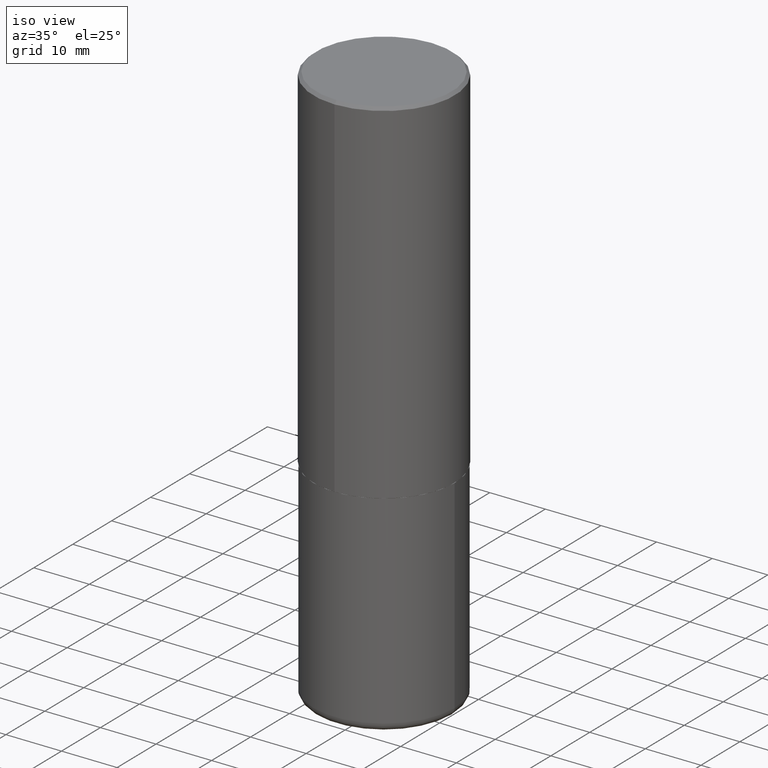
[diagram: clean part render]
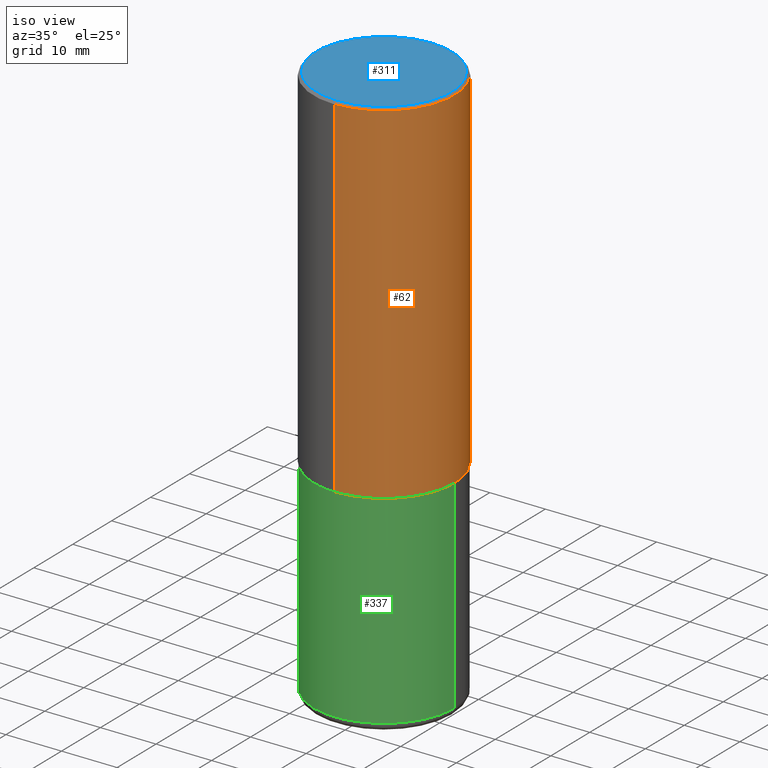
[diagram: same view with three faces highlighted in distinct colors, each labeled with its STEP entity id]
A machine part, iso view with three faces highlighted in distinct colors.
Their STEP definitions:

[orange] entity #62 — the highlighted cylindrical surface (partial cylindrical patch) has radius 12.7 mm, axis along (-0, 0, 1).
#2 = CARTESIAN_POINT ( 'NONE',  ( 0.000000000000000000, 0.000000000000000000, 0.000000000000000000 ) ) ;
#20 = VECTOR ( 'NONE', #314, 39.37007874015748143 ) ;
#26 = DIRECTION ( 'NONE',  ( -6.982962677686265922E-15, -1.000000000000000000, 3.491643216902136408E-15 ) ) ;
#32 = CARTESIAN_POINT ( 'NONE',  ( 4.889089068553708695E-31, -6.985609897644266091E-17, -0.02000000000000010797 ) ) ;
#38 = CYLINDRICAL_SURFACE ( 'NONE', #355, 0.5000000000000001110 ) ;
#40 = VERTEX_POINT ( 'NONE', #327 ) ;
#42 = EDGE_LOOP ( 'NONE', ( #71, #195, #366, #330 ) ) ;
#62 = ADVANCED_FACE ( 'NONE', ( #361 ), #38, .T. ) ;
#71 = ORIENTED_EDGE ( 'NONE', *, *, #165, .T. ) ;
#76 = DIRECTION ( 'NONE',  ( -2.444544534276841438E-29, 3.492804948822114088E-15, 1.000000000000000000 ) ) ;
#99 = AXIS2_PLACEMENT_3D ( 'NONE', #32, #287, #26 ) ;
#112 = AXIS2_PLACEMENT_3D ( 'NONE', #175, #239, #370 ) ;
#117 = DIRECTION ( 'NONE',  ( -2.444544534276841158E-29, 3.492804948822114482E-15, 1.000000000000000000 ) ) ;
#120 = LINE ( 'NONE', #280, #20 ) ;
#145 = DIRECTION ( 'NONE',  ( -6.982962677686265922E-15, -1.000000000000000000, 3.492804948822114088E-15 ) ) ;
#159 = CIRCLE ( 'NONE', #112, 0.5000000000000002220 ) ;
#165 = EDGE_CURVE ( 'NONE', #40, #229, #159, .T. ) ;
#175 = CARTESIAN_POINT ( 'NONE',  ( 6.108916791157827585E-29, -8.728519567106463881E-15, -2.499000000000000110 ) ) ;
#195 = ORIENTED_EDGE ( 'NONE', *, *, #230, .T. ) ;
#229 = VERTEX_POINT ( 'NONE', #312 ) ;
#230 = EDGE_CURVE ( 'NONE', #229, #387, #120, .T. ) ;
#239 = DIRECTION ( 'NONE',  ( -2.444544534276841438E-29, 3.492804948822114088E-15, 1.000000000000000000 ) ) ;
#247 = CARTESIAN_POINT ( 'NONE',  ( -3.491481338843133750E-15, -0.5000000000000001110, 1.746402474411057438E-15 ) ) ;
#261 = EDGE_CURVE ( 'NONE', #40, #391, #400, .T. ) ;
#280 = CARTESIAN_POINT ( 'NONE',  ( 3.552713678800501718E-15, 0.5000000000000001110, -1.746402474411057438E-15 ) ) ;
#287 = DIRECTION ( 'NONE',  ( -2.444544534276841438E-29, 3.492804948822114088E-15, 1.000000000000000000 ) ) ;
#312 = CARTESIAN_POINT ( 'NONE',  ( 3.552713678800533273E-15, 0.4999999999999916178, -2.499000000000001886 ) ) ;
#314 = DIRECTION ( 'NONE',  ( -2.444544534276841158E-29, 3.492804948822114482E-15, 1.000000000000000000 ) ) ;
#316 = VECTOR ( 'NONE', #117, 39.37007874015748143 ) ;
#327 = CARTESIAN_POINT ( 'NONE',  ( -3.491481338843073796E-15, -0.5000000000000089928, -2.498999999999998778 ) ) ;
#330 = ORIENTED_EDGE ( 'NONE', *, *, #261, .F. ) ;
#333 = EDGE_CURVE ( 'NONE', #391, #387, #388, .T. ) ;
#355 = AXIS2_PLACEMENT_3D ( 'NONE', #2, #76, #145 ) ;
#361 = FACE_OUTER_BOUND ( 'NONE', #42, .T. ) ;
#366 = ORIENTED_EDGE ( 'NONE', *, *, #333, .F. ) ;
#370 = DIRECTION ( 'NONE',  ( -6.982962677686266711E-15, -1.000000000000000000, 3.278217592397114284E-15 ) ) ;
#387 = VERTEX_POINT ( 'NONE', #413 ) ;
#388 = CIRCLE ( 'NONE', #99, 0.5000000000000000000 ) ;
#391 = VERTEX_POINT ( 'NONE', #406 ) ;
#400 = LINE ( 'NONE', #247, #316 ) ;
#406 = CARTESIAN_POINT ( 'NONE',  ( -3.430248998885764992E-15, -0.5000000000000001110, -0.01999999999999835937 ) ) ;
#413 = CARTESIAN_POINT ( 'NONE',  ( 3.491481338843133355E-15, 0.4999999999999999445, -0.02000000000000185310 ) ) ;

[blue] entity #311 — the highlighted planar face has unit normal (0, -0, -1).
#5 = VERTEX_POINT ( 'NONE', #198 ) ;
#29 = DIRECTION ( 'NONE',  ( -6.982962677686265922E-15, -1.000000000000000000, 3.492804948822113694E-15 ) ) ;
#45 = AXIS2_PLACEMENT_3D ( 'NONE', #48, #294, #29 ) ;
#48 = CARTESIAN_POINT ( 'NONE',  ( 3.219185358931801043E-45, -4.599624345227544074E-31, -1.316885544032078073E-16 ) ) ;
#61 = DIRECTION ( 'NONE',  ( 6.982962677686265922E-15, 1.000000000000000000, -3.492804948822114482E-15 ) ) ;
#104 = ORIENTED_EDGE ( 'NONE', *, *, #289, .T. ) ;
#116 = DIRECTION ( 'NONE',  ( -6.982962677686265922E-15, -1.000000000000000000, 3.492804948822113694E-15 ) ) ;
#118 = CARTESIAN_POINT ( 'NONE',  ( 3.219185358931801043E-45, -4.599624345227544074E-31, -1.316885544032078073E-16 ) ) ;
#135 = EDGE_LOOP ( 'NONE', ( #362, #104 ) ) ;
#139 = AXIS2_PLACEMENT_3D ( 'NONE', #118, #153, #116 ) ;
#153 = DIRECTION ( 'NONE',  ( -2.444544534276841438E-29, 3.492804948822114088E-15, 1.000000000000000000 ) ) ;
#160 = CARTESIAN_POINT ( 'NONE',  ( 3.351822085289408337E-15, 0.4800000000000000933, -1.742390652636218903E-15 ) ) ;
#188 = PLANE ( 'NONE',  #323 ) ;
#198 = CARTESIAN_POINT ( 'NONE',  ( 3.421651712066271240E-15, 0.4800000000000000933, -1.808234929837822918E-15 ) ) ;
#233 = VERTEX_POINT ( 'NONE', #405 ) ;
#289 = EDGE_CURVE ( 'NONE', #233, #5, #373, .T. ) ;
#294 = DIRECTION ( 'NONE',  ( -2.444544534276841438E-29, 3.492804948822114088E-15, 1.000000000000000000 ) ) ;
#311 = ADVANCED_FACE ( 'NONE', ( #321 ), #188, .F. ) ;
#315 = CIRCLE ( 'NONE', #139, 0.4800000000000000933 ) ;
#321 = FACE_OUTER_BOUND ( 'NONE', #135, .T. ) ;
#323 = AXIS2_PLACEMENT_3D ( 'NONE', #160, #379, #61 ) ;
#362 = ORIENTED_EDGE ( 'NONE', *, *, #416, .T. ) ;
#373 = CIRCLE ( 'NONE', #45, 0.4800000000000000933 ) ;
#379 = DIRECTION ( 'NONE',  ( 2.444544534276840877E-29, -3.492804948822114482E-15, -1.000000000000000000 ) ) ;
#405 = CARTESIAN_POINT ( 'NONE',  ( -3.361644018908050055E-15, -0.4800000000000000933, 1.544857821031407057E-15 ) ) ;
#416 = EDGE_CURVE ( 'NONE', #5, #233, #315, .T. ) ;

[green] entity #337 — the highlighted cylindrical surface (partial cylindrical patch) has radius 12.7 mm, axis along (-0, 0, 1).
#1 = AXIS2_PLACEMENT_3D ( 'NONE', #121, #82, #14 ) ;
#3 = ORIENTED_EDGE ( 'NONE', *, *, #92, .F. ) ;
#14 = DIRECTION ( 'NONE',  ( 1.000000000000000000, -6.982962677686269077E-15, 0.000000000000000000 ) ) ;
#15 = EDGE_CURVE ( 'NONE', #30, #224, #293, .T. ) ;
#30 = VERTEX_POINT ( 'NONE', #110 ) ;
#55 = CARTESIAN_POINT ( 'NONE',  ( 0.5000000000000001110, -1.724791781388512737E-14, -3.939999999999999947 ) ) ;
#59 = AXIS2_PLACEMENT_3D ( 'NONE', #319, #407, #123 ) ;
#60 = AXIS2_PLACEMENT_3D ( 'NONE', #301, #132, #202 ) ;
#82 = DIRECTION ( 'NONE',  ( -2.445468806185136597E-29, 3.491481338843145583E-15, 1.000000000000000000 ) ) ;
#92 = EDGE_CURVE ( 'NONE', #304, #359, #126, .T. ) ;
#95 = CYLINDRICAL_SURFACE ( 'NONE', #59, 0.5000000000000000000 ) ;
#110 = CARTESIAN_POINT ( 'NONE',  ( -0.5000000000000001110, -1.020372279624149151E-14, -3.939999999999999947 ) ) ;
#121 = CARTESIAN_POINT ( 'NONE',  ( 6.113672015462842613E-29, -8.728703347107864943E-15, -2.500000000000000000 ) ) ;
#123 = DIRECTION ( 'NONE',  ( 1.000000000000000000, -6.982962677686266711E-15, 4.876176775795935793E-29 ) ) ;
#126 = CIRCLE ( 'NONE', #1, 0.5000000000000000000 ) ;
#131 = ORIENTED_EDGE ( 'NONE', *, *, #189, .T. ) ;
#132 = DIRECTION ( 'NONE',  ( -2.445468806185136597E-29, 3.491481338843145583E-15, 1.000000000000000000 ) ) ;
#133 = EDGE_CURVE ( 'NONE', #30, #304, #403, .T. ) ;
#151 = CARTESIAN_POINT ( 'NONE',  ( -0.5000000000000000000, 3.552713678800500929E-15, -2.459467545127452891E-29 ) ) ;
#154 = FACE_OUTER_BOUND ( 'NONE', #383, .T. ) ;
#177 = DIRECTION ( 'NONE',  ( -2.445468806185136877E-29, 3.491481338843145188E-15, 1.000000000000000000 ) ) ;
#189 = EDGE_CURVE ( 'NONE', #224, #359, #286, .T. ) ;
#191 = CARTESIAN_POINT ( 'NONE',  ( 0.5000000000000000000, -1.222018468595099830E-14, -2.500000000000000000 ) ) ;
#200 = ORIENTED_EDGE ( 'NONE', *, *, #15, .T. ) ;
#202 = DIRECTION ( 'NONE',  ( 1.000000000000000000, -6.982962677686265133E-15, 0.000000000000000000 ) ) ;
#208 = CARTESIAN_POINT ( 'NONE',  ( 0.5000000000000000000, -3.491481338843133355E-15, 2.438088387897967896E-29 ) ) ;
#224 = VERTEX_POINT ( 'NONE', #55 ) ;
#250 = DIRECTION ( 'NONE',  ( -2.445468806185136877E-29, 3.491481338843145188E-15, 1.000000000000000000 ) ) ;
#286 = LINE ( 'NONE', #208, #348 ) ;
#293 = CIRCLE ( 'NONE', #60, 0.5000000000000001110 ) ;
#301 = CARTESIAN_POINT ( 'NONE',  ( 9.635147096369438236E-29, -1.375643647504199401E-14, -3.939999999999999947 ) ) ;
#304 = VERTEX_POINT ( 'NONE', #324 ) ;
#319 = CARTESIAN_POINT ( 'NONE',  ( 0.000000000000000000, 0.000000000000000000, 0.000000000000000000 ) ) ;
#324 = CARTESIAN_POINT ( 'NONE',  ( -0.5000000000000000000, -7.689856232274428549E-15, -2.500000000000000000 ) ) ;
#337 = ADVANCED_FACE ( 'NONE', ( #154 ), #95, .T. ) ;
#348 = VECTOR ( 'NONE', #250, 39.37007874015748143 ) ;
#359 = VERTEX_POINT ( 'NONE', #191 ) ;
#360 = VECTOR ( 'NONE', #177, 39.37007874015748143 ) ;
#383 = EDGE_LOOP ( 'NONE', ( #411, #200, #131, #3 ) ) ;
#403 = LINE ( 'NONE', #151, #360 ) ;
#407 = DIRECTION ( 'NONE',  ( -2.445468806185136597E-29, 3.491481338843145583E-15, 1.000000000000000000 ) ) ;
#411 = ORIENTED_EDGE ( 'NONE', *, *, #133, .F. ) ;